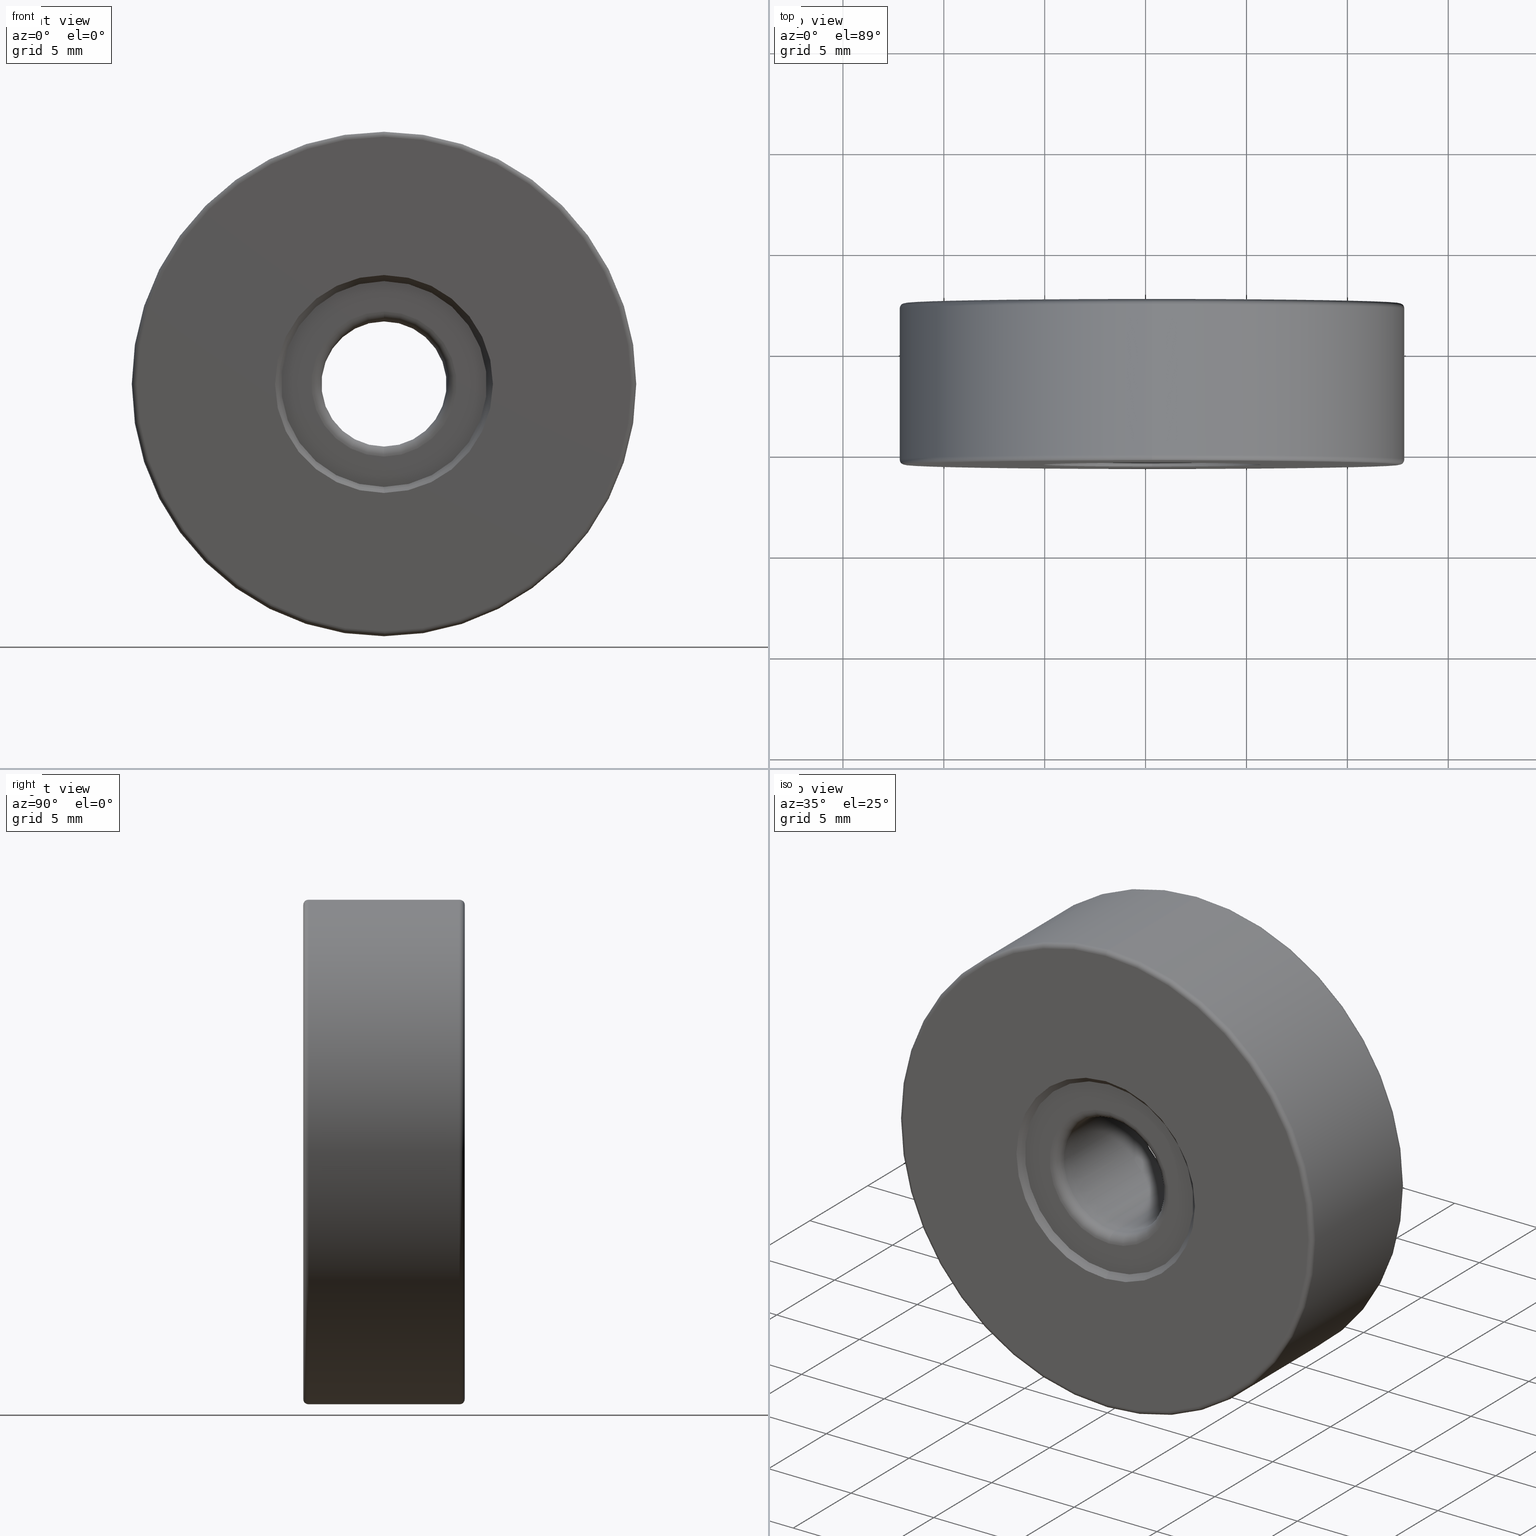
[diagram: canonical four-view strip — front | top / right | iso, engineering-drawing reading convention]
A machine part, canonical four-view strip (front | top / right | iso — engineering-drawing reading convention). The complete STEP part file that produces these views, byte-faithful:
ISO-10303-21;
HEADER;
FILE_DESCRIPTION (( 'STEP AP203' ),
    '1' );
FILE_NAME ('1.4.2.108_ZGH-25-DK8.STEP',
    '2022-04-15T03:01:00',
    ( '' ),
    ( '' ),
    'SwSTEP 2.0',
    'SolidWorks 2021',
    '' );
FILE_SCHEMA (( 'CONFIG_CONTROL_DESIGN' ));
ENDSEC;

DATA;
#1 = EDGE_CURVE ( 'NONE', #123, #253, #270, .T. ) ;
#2 = VERTEX_POINT ( 'NONE', #334 ) ;
#3 = CARTESIAN_POINT ( 'NONE',  ( -4.682026255059963837, 2.405024023001725020, 19.60000000000000497 ) ) ;
#4 = AXIS2_PLACEMENT_3D ( 'NONE', #587, #158, #346 ) ;
#5 = DIRECTION ( 'NONE',  ( 0.0000000000000000000, 0.0000000000000000000, 1.000000000000000000 ) ) ;
#6 = DIRECTION ( 'NONE',  ( 0.0000000000000000000, 0.0000000000000000000, 1.000000000000000000 ) ) ;
#7 = VERTEX_POINT ( 'NONE', #57 ) ;
#8 = CARTESIAN_POINT ( 'NONE',  ( -4.682026255059962949, -5.594975976998274980, 12.75000000000000178 ) ) ;
#9 = VERTEX_POINT ( 'NONE', #108 ) ;
#10 = VERTEX_POINT ( 'NONE', #476 ) ;
#11 = ADVANCED_FACE ( 'NONE', ( #245 ), #228, .T. ) ;
#12 = AXIS2_PLACEMENT_3D ( 'NONE', #408, #70, #118 ) ;
#13 = AXIS2_PLACEMENT_3D ( 'NONE', #581, #534, #479 ) ;
#14 = DIRECTION ( 'NONE',  ( 0.0000000000000000000, 0.0000000000000000000, 1.000000000000000000 ) ) ;
#15 = AXIS2_PLACEMENT_3D ( 'NONE', #544, #295, #583 ) ;
#16 = DIRECTION ( 'NONE',  ( 0.0000000000000000000, 0.0000000000000000000, 1.000000000000000000 ) ) ;
#17 = ORIENTED_EDGE ( 'NONE', *, *, #102, .F. ) ;
#18 = ORIENTED_EDGE ( 'NONE', *, *, #299, .F. ) ;
#19 = EDGE_CURVE ( 'NONE', #558, #2, #417, .T. ) ;
#20 = DIRECTION ( 'NONE',  ( 0.0000000000000000000, 0.0000000000000000000, -1.000000000000000000 ) ) ;
#21 = VERTEX_POINT ( 'NONE', #443 ) ;
#22 = APPROVAL_PERSON_ORGANIZATION ( #357, #115, #366 ) ;
#23 = DIRECTION ( 'NONE',  ( 0.0000000000000000000, 1.000000000000000000, 0.0000000000000000000 ) ) ;
#24 = CARTESIAN_POINT ( 'NONE',  ( -4.682026255059964726, -5.344975976998274980, 25.00000000000000000 ) ) ;
#25 = ORIENTED_EDGE ( 'NONE', *, *, #111, .F. ) ;
#26 = DIRECTION ( 'NONE',  ( 0.0000000000000000000, -0.7071067811865465735, -0.7071067811865485719 ) ) ;
#27 = CALENDAR_DATE ( 2022, 15, 4 ) ;
#28 = ADVANCED_FACE ( 'NONE', ( #453 ), #131, .T. ) ;
#29 = AXIS2_PLACEMENT_3D ( 'NONE', #469, #50, #424 ) ;
#30 = CARTESIAN_POINT ( 'NONE',  ( -4.682026255059964726, -5.594975976998274980, 25.00000000000000000 ) ) ;
#31 = AXIS2_PLACEMENT_3D ( 'NONE', #330, #378, #573 ) ;
#32 = CC_DESIGN_PERSON_AND_ORGANIZATION_ASSIGNMENT ( #351, #257, ( #483 ) ) ;
#33 = ORIENTED_EDGE ( 'NONE', *, *, #58, .F. ) ;
#34 = CARTESIAN_POINT ( 'NONE',  ( -4.682026255059964726, -4.794975976998275158, 25.00000000000000000 ) ) ;
#35 = DIRECTION ( 'NONE',  ( 0.0000000000000000000, 0.0000000000000000000, 1.000000000000000000 ) ) ;
#36 = ADVANCED_FACE ( 'NONE', ( #548, #170 ), #555, .T. ) ;
#37 = DIRECTION ( 'NONE',  ( -0.0000000000000000000, -1.000000000000000000, -0.0000000000000000000 ) ) ;
#38 = DIRECTION ( 'NONE',  ( 0.0000000000000000000, 1.000000000000000000, 0.0000000000000000000 ) ) ;
#39 = ADVANCED_FACE ( 'NONE', ( #301, #305 ), #496, .T. ) ;
#40 = CARTESIAN_POINT ( 'NONE',  ( -4.682026255059964726, -5.344975976998274980, 37.50000000000000711 ) ) ;
#41 = TOROIDAL_SURFACE ( 'NONE', #388, 12.25000000000000000, 0.2500000000000000000 ) ;
#42 = DIRECTION ( 'NONE',  ( 0.0000000000000000000, 0.0000000000000000000, 1.000000000000000000 ) ) ;
#43 = AXIS2_PLACEMENT_3D ( 'NONE', #195, #336, #290 ) ;
#44 = EDGE_LOOP ( 'NONE', ( #289, #103 ) ) ;
#45 = DIRECTION ( 'NONE',  ( 0.0000000000000000000, 0.0000000000000000000, 1.000000000000000000 ) ) ;
#46 = VERTEX_POINT ( 'NONE', #440 ) ;
#47 = ORIENTED_EDGE ( 'NONE', *, *, #1, .T. ) ;
#48 = LINE ( 'NONE', #235, #281 ) ;
#49 = ADVANCED_FACE ( 'NONE', ( #505 ), #82, .F. ) ;
#50 = DIRECTION ( 'NONE',  ( 0.0000000000000000000, -1.000000000000000000, 0.0000000000000000000 ) ) ;
#51 = CIRCLE ( 'NONE', #415, 0.5000000000000004441 ) ;
#52 = DIRECTION ( 'NONE',  ( -0.0000000000000000000, -1.000000000000000000, -0.0000000000000000000 ) ) ;
#53 = ORIENTED_EDGE ( 'NONE', *, *, #95, .T. ) ;
#54 = AXIS2_PLACEMENT_3D ( 'NONE', #524, #145, #5 ) ;
#55 = DIRECTION ( 'NONE',  ( 0.0000000000000000000, 0.0000000000000000000, -1.000000000000000000 ) ) ;
#56 = PRODUCT_DEFINITION_SHAPE ( 'NONE', 'NONE',  #550 ) ;
#57 = CARTESIAN_POINT ( 'NONE',  ( -4.682026255059964726, -5.594975976998274980, 19.60000000000000853 ) ) ;
#58 = EDGE_CURVE ( 'NONE', #146, #123, #592, .T. ) ;
#59 = DIRECTION ( 'NONE',  ( 0.0000000000000000000, 1.000000000000000000, 0.0000000000000000000 ) ) ;
#60 = PRODUCT_DEFINITION_FORMATION_WITH_SPECIFIED_SOURCE ( '�κ�', '', #574, .NOT_KNOWN. ) ;
#61 = ORIENTED_EDGE ( 'NONE', *, *, #267, .F. ) ;
#62 = DIRECTION ( 'NONE',  ( -1.000000000000000000, 0.0000000000000000000, 0.0000000000000000000 ) ) ;
#63 = AXIS2_PLACEMENT_3D ( 'NONE', #318, #414, #560 ) ;
#64 = DIRECTION ( 'NONE',  ( -0.0000000000000000000, -1.000000000000000000, -0.0000000000000000000 ) ) ;
#65 = DIRECTION ( 'NONE',  ( 0.0000000000000000000, -0.0000000000000000000, 1.000000000000000000 ) ) ;
#66 = ADVANCED_FACE ( 'NONE', ( #545 ), #446, .F. ) ;
#67 = ORIENTED_EDGE ( 'NONE', *, *, #611, .F. ) ;
#68 = DIRECTION ( 'NONE',  ( 0.0000000000000000000, 0.0000000000000000000, 1.000000000000000000 ) ) ;
#69 = ORIENTED_EDGE ( 'NONE', *, *, #211, .T. ) ;
#70 = DIRECTION ( 'NONE',  ( 0.0000000000000000000, 0.0000000000000000000, 1.000000000000000000 ) ) ;
#71 = EDGE_LOOP ( 'NONE', ( #600, #78, #275, #97 ) ) ;
#72 = CIRCLE ( 'NONE', #539, 0.2500000000000002220 ) ;
#73 = DIRECTION ( 'NONE',  ( 0.0000000000000000000, 1.000000000000000000, 0.0000000000000000000 ) ) ;
#74 = DIRECTION ( 'NONE',  ( 1.000000000000000000, -0.0000000000000000000, 1.224646799147353207E-16 ) ) ;
#75 = APPLICATION_CONTEXT ( 'configuration controlled 3d designs of mechanical parts and assemblies' ) ;
#76 = EDGE_CURVE ( 'NONE', #10, #253, #271, .T. ) ;
#77 = COORDINATED_UNIVERSAL_TIME_OFFSET ( 8, 0, .AHEAD. ) ;
#78 = ORIENTED_EDGE ( 'NONE', *, *, #345, .T. ) ;
#79 = VERTEX_POINT ( 'NONE', #609 ) ;
#80 = CYLINDRICAL_SURFACE ( 'NONE', #129, 12.50000000000000000 ) ;
#81 = DIRECTION ( 'NONE',  ( 0.0000000000000000000, 0.0000000000000000000, 1.000000000000000000 ) ) ;
#82 = CONICAL_SURFACE ( 'NONE', #4, 5.399999999999991473, 0.7853981633974497223 ) ;
#83 = EDGE_CURVE ( 'NONE', #198, #329, #427, .T. ) ;
#84 = LINE ( 'NONE', #222, #531 ) ;
#85 = DIRECTION ( 'NONE',  ( -0.0000000000000000000, -1.000000000000000000, -0.0000000000000000000 ) ) ;
#86 = DIRECTION ( 'NONE',  ( 0.0000000000000000000, 0.0000000000000000000, 1.000000000000000000 ) ) ;
#87 = DIRECTION ( 'NONE',  ( 0.0000000000000000000, 0.0000000000000000000, -1.000000000000000000 ) ) ;
#88 = CARTESIAN_POINT ( 'NONE',  ( -4.682026255059962949, 2.155024023001725020, 37.50000000000000711 ) ) ;
#89 = DATE_AND_TIME ( #190, #460 ) ;
#90 = AXIS2_PLACEMENT_3D ( 'NONE', #34, #314, #215 ) ;
#91 = ORIENTED_EDGE ( 'NONE', *, *, #393, .F. ) ;
#92 = OPEN_SHELL ( 'NONE', ( #227, #11, #461, #367, #339, #452, #66, #28, #36, #292, #203, #307, #386, #49, #186, #276, #572, #137, #39, #285 ) ) ;
#93 = CONICAL_SURFACE ( 'NONE', #522, 5.399999999999991473, 0.7853981633974497223 ) ;
#94 = EDGE_LOOP ( 'NONE', ( #419, #157 ) ) ;
#95 = EDGE_CURVE ( 'NONE', #421, #558, #226, .T. ) ;
#96 = FACE_OUTER_BOUND ( 'NONE', #498, .T. ) ;
#97 = ORIENTED_EDGE ( 'NONE', *, *, #211, .F. ) ;
#98 = CARTESIAN_POINT ( 'NONE',  ( -4.682026255059964726, 2.155024023001725020, 25.00000000000000000 ) ) ;
#99 = DIRECTION ( 'NONE',  ( 0.0000000000000000000, 0.0000000000000000000, -1.000000000000000000 ) ) ;
#100 = CARTESIAN_POINT ( 'NONE',  ( -4.682026255059964726, 2.405024023001725020, 25.00000000000000000 ) ) ;
#101 = CIRCLE ( 'NONE', #399, 3.599999999999999201 ) ;
#102 = EDGE_CURVE ( 'NONE', #9, #7, #139, .T. ) ;
#103 = ORIENTED_EDGE ( 'NONE', *, *, #102, .T. ) ;
#104 = AXIS2_PLACEMENT_3D ( 'NONE', #507, #361, #363 ) ;
#105 = DIRECTION ( 'NONE',  ( 1.000000000000000000, -0.0000000000000000000, 1.224646799147353207E-16 ) ) ;
#106 = ORIENTED_EDGE ( 'NONE', *, *, #547, .T. ) ;
#107 = DIRECTION ( 'NONE',  ( 0.0000000000000000000, 0.0000000000000000000, 1.000000000000000000 ) ) ;
#108 = CARTESIAN_POINT ( 'NONE',  ( -4.682026255059963837, -5.594975976998274980, 30.39999999999999147 ) ) ;
#109 = ORIENTED_EDGE ( 'NONE', *, *, #566, .T. ) ;
#110 = CARTESIAN_POINT ( 'NONE',  ( -4.682026255059962949, -5.294975976998274270, 28.60000000000000142 ) ) ;
#111 = EDGE_CURVE ( 'NONE', #79, #433, #260, .T. ) ;
#112 = CIRCLE ( 'NONE', #459, 0.5000000000000004441 ) ;
#113 = ORIENTED_EDGE ( 'NONE', *, *, #247, .T. ) ;
#114 = TOROIDAL_SURFACE ( 'NONE', #15, 3.600000000000000089, 0.5000000000000000000 ) ;
#115 = APPROVAL ( #556, 'δָ��' ) ;
#116 = ORIENTED_EDGE ( 'NONE', *, *, #582, .F. ) ;
#117 = MECHANICAL_CONTEXT ( 'NONE', #75, 'mechanical' ) ;
#118 = DIRECTION ( 'NONE',  ( 1.000000000000000000, 0.0000000000000000000, 0.0000000000000000000 ) ) ;
#119 = CIRCLE ( 'NONE', #191, 3.599999999999999201 ) ;
#120 = EDGE_CURVE ( 'NONE', #264, #46, #485, .T. ) ;
#121 = DIRECTION ( 'NONE',  ( 0.0000000000000000000, -0.0000000000000000000, 1.000000000000000000 ) ) ;
#122 = AXIS2_PLACEMENT_3D ( 'NONE', #156, #73, #391 ) ;
#123 = VERTEX_POINT ( 'NONE', #371 ) ;
#124 = DIRECTION ( 'NONE',  ( 0.0000000000000000000, 0.0000000000000000000, -1.000000000000000000 ) ) ;
#125 = APPROVAL ( #303, 'δָ��' ) ;
#126 = PLANE ( 'NONE',  #104 ) ;
#127 = DATE_AND_TIME ( #266, #324 ) ;
#128 = EDGE_CURVE ( 'NONE', #187, #421, #604, .T. ) ;
#129 = AXIS2_PLACEMENT_3D ( 'NONE', #516, #425, #99 ) ;
#130 = CARTESIAN_POINT ( 'NONE',  ( -4.682026255059964726, 2.105024023001725197, 30.10000000000000142 ) ) ;
#131 = TOROIDAL_SURFACE ( 'NONE', #462, 3.600000000000000089, 0.5000000000000000000 ) ;
#132 = DIRECTION ( 'NONE',  ( 0.0000000000000000000, 1.000000000000000000, 0.0000000000000000000 ) ) ;
#133 = ORIENTED_EDGE ( 'NONE', *, *, #547, .F. ) ;
#134 = DIRECTION ( 'NONE',  ( -1.000000000000000000, 0.0000000000000000000, 0.0000000000000000000 ) ) ;
#135 = ORIENTED_EDGE ( 'NONE', *, *, #147, .F. ) ;
#136 = ORIENTED_EDGE ( 'NONE', *, *, #19, .F. ) ;
#137 = ADVANCED_FACE ( 'NONE', ( #606 ), #436, .T. ) ;
#138 = CIRCLE ( 'NONE', #199, 3.599999999999999201 ) ;
#139 = CIRCLE ( 'NONE', #160, 5.399999999999991473 ) ;
#140 = DIRECTION ( 'NONE',  ( -0.0000000000000000000, 1.000000000000000000, -0.0000000000000000000 ) ) ;
#141 = VERTEX_POINT ( 'NONE', #40 ) ;
#142 = FACE_OUTER_BOUND ( 'NONE', #538, .T. ) ;
#143 = DIRECTION ( 'NONE',  ( 0.0000000000000000000, 0.0000000000000000000, 1.000000000000000000 ) ) ;
#144 = APPLICATION_CONTEXT ( 'configuration controlled 3d designs of mechanical parts and assemblies' ) ;
#145 = DIRECTION ( 'NONE',  ( 0.0000000000000000000, 1.000000000000000000, 0.0000000000000000000 ) ) ;
#146 = VERTEX_POINT ( 'NONE', #130 ) ;
#147 = EDGE_CURVE ( 'NONE', #79, #7, #84, .T. ) ;
#148 = DIRECTION ( 'NONE',  ( 0.0000000000000000000, 0.0000000000000000000, -1.000000000000000000 ) ) ;
#149 = ORIENTED_EDGE ( 'NONE', *, *, #247, .F. ) ;
#150 = DIRECTION ( 'NONE',  ( 0.0000000000000000000, 1.000000000000000000, 0.0000000000000000000 ) ) ;
#151 = CIRCLE ( 'NONE', #409, 0.5000000000000004441 ) ;
#152 = ORIENTED_EDGE ( 'NONE', *, *, #19, .T. ) ;
#153 = AXIS2_PLACEMENT_3D ( 'NONE', #206, #23, #121 ) ;
#154 = DIRECTION ( 'NONE',  ( 0.0000000000000000000, 1.000000000000000000, 0.0000000000000000000 ) ) ;
#155 = EDGE_LOOP ( 'NONE', ( #385, #375, #259, #67 ) ) ;
#156 = CARTESIAN_POINT ( 'NONE',  ( -4.682026255059964726, -5.344975976998274980, 25.00000000000000000 ) ) ;
#157 = ORIENTED_EDGE ( 'NONE', *, *, #120, .T. ) ;
#158 = DIRECTION ( 'NONE',  ( -0.0000000000000000000, -1.000000000000000000, -0.0000000000000000000 ) ) ;
#159 = APPROVAL_PERSON_ORGANIZATION ( #458, #477, #599 ) ;
#160 = AXIS2_PLACEMENT_3D ( 'NONE', #277, #132, #457 ) ;
#161 = CARTESIAN_POINT ( 'NONE',  ( -4.682026255059964726, -5.294975976998275158, 25.00000000000000000 ) ) ;
#162 = CARTESIAN_POINT ( 'NONE',  ( -4.682026255059964726, 2.105024023001731859, 30.10000000000000142 ) ) ;
#163 = SECURITY_CLASSIFICATION_LEVEL ( 'unclassified' ) ;
#164 = ORIENTED_EDGE ( 'NONE', *, *, #493, .T. ) ;
#165 = FACE_OUTER_BOUND ( 'NONE', #249, .T. ) ;
#166 = DIRECTION ( 'NONE',  ( 0.0000000000000000000, 1.000000000000000000, 0.0000000000000000000 ) ) ;
#167 =( NAMED_UNIT ( * ) PLANE_ANGLE_UNIT ( ) SI_UNIT ( $, .RADIAN. ) );
#168 = ORIENTED_EDGE ( 'NONE', *, *, #406, .T. ) ;
#169 = DIRECTION ( 'NONE',  ( 0.0000000000000000000, 0.0000000000000000000, 1.000000000000000000 ) ) ;
#170 = FACE_OUTER_BOUND ( 'NONE', #188, .T. ) ;
#171 = EDGE_LOOP ( 'NONE', ( #615, #255, #69, #283 ) ) ;
#172 = CIRCLE ( 'NONE', #589, 12.50000000000000355 ) ;
#173 = CIRCLE ( 'NONE', #512, 5.100000000000000533 ) ;
#174 = AXIS2_PLACEMENT_3D ( 'NONE', #300, #537, #488 ) ;
#175 = EDGE_LOOP ( 'NONE', ( #490, #569, #372, #17 ) ) ;
#176 = DIRECTION ( 'NONE',  ( 0.0000000000000000000, 0.0000000000000000000, 1.000000000000000000 ) ) ;
#177 = EDGE_CURVE ( 'NONE', #146, #10, #173, .T. ) ;
#178 = DATE_AND_TIME ( #27, #511 ) ;
#179 = DIRECTION ( 'NONE',  ( 0.0000000000000000000, 1.000000000000000000, 0.0000000000000000000 ) ) ;
#180 = DIRECTION ( 'NONE',  ( 0.0000000000000000000, 1.000000000000000000, 0.0000000000000000000 ) ) ;
#181 = CARTESIAN_POINT ( 'NONE',  ( -4.682026255059964726, 2.155024023001725020, 37.25000000000000711 ) ) ;
#182 = CC_DESIGN_SECURITY_CLASSIFICATION ( #483, ( #60 ) ) ;
#183 = AXIS2_PLACEMENT_3D ( 'NONE', #100, #422, #472 ) ;
#184 = FACE_OUTER_BOUND ( 'NONE', #94, .T. ) ;
#185 = ORIENTED_EDGE ( 'NONE', *, *, #591, .T. ) ;
#186 = ADVANCED_FACE ( 'NONE', ( #184, #321 ), #126, .F. ) ;
#187 = VERTEX_POINT ( 'NONE', #221 ) ;
#188 = EDGE_LOOP ( 'NONE', ( #373, #444 ) ) ;
#189 = DIRECTION ( 'NONE',  ( 0.0000000000000000000, 0.0000000000000000000, 1.000000000000000000 ) ) ;
#190 = CALENDAR_DATE ( 2022, 15, 4 ) ;
#191 = AXIS2_PLACEMENT_3D ( 'NONE', #435, #64, #68 ) ;
#192 = CARTESIAN_POINT ( 'NONE',  ( -4.682026255059964726, -5.594975976998274980, 25.00000000000000000 ) ) ;
#193 = EDGE_CURVE ( 'NONE', #323, #421, #238, .T. ) ;
#194 = ORIENTED_EDGE ( 'NONE', *, *, #58, .T. ) ;
#195 = CARTESIAN_POINT ( 'NONE',  ( -4.682026255059964726, 2.105024023001725197, 25.00000000000000000 ) ) ;
#196 = ORIENTED_EDGE ( 'NONE', *, *, #481, .F. ) ;
#197 = DIRECTION ( 'NONE',  ( 0.0000000000000000000, 1.000000000000000000, 0.0000000000000000000 ) ) ;
#198 = VERTEX_POINT ( 'NONE', #88 ) ;
#199 = AXIS2_PLACEMENT_3D ( 'NONE', #478, #233, #278 ) ;
#200 = TOROIDAL_SURFACE ( 'NONE', #411, 3.600000000000000089, 0.5000000000000000000 ) ;
#201 = CIRCLE ( 'NONE', #174, 5.100000000000000533 ) ;
#202 = DIRECTION ( 'NONE',  ( 0.0000000000000000000, -1.000000000000000000, 0.0000000000000000000 ) ) ;
#203 = ADVANCED_FACE ( 'NONE', ( #280 ), #216, .F. ) ;
#204 = ORIENTED_EDGE ( 'NONE', *, *, #536, .F. ) ;
#205 = CARTESIAN_POINT ( 'NONE',  ( -4.682026255059964726, -4.794975976998275158, 28.10000000000000142 ) ) ;
#206 = CARTESIAN_POINT ( 'NONE',  ( -4.682026255059964726, 2.105024023001725197, 25.00000000000000000 ) ) ;
#207 = CARTESIAN_POINT ( 'NONE',  ( -4.682026255059963837, -5.294975976998275158, 30.10000000000000142 ) ) ;
#208 = CARTESIAN_POINT ( 'NONE',  ( -4.682026255059964726, 1.605024023001724975, 25.00000000000000000 ) ) ;
#209 = AXIS2_PLACEMENT_3D ( 'NONE', #398, #296, #65 ) ;
#210 = DIRECTION ( 'NONE',  ( -0.0000000000000000000, -1.000000000000000000, -0.0000000000000000000 ) ) ;
#211 = EDGE_CURVE ( 'NONE', #466, #310, #48, .T. ) ;
#212 = CARTESIAN_POINT ( 'NONE',  ( -4.682026255059964726, -5.594975976998274980, 25.00000000000000000 ) ) ;
#213 = COORDINATED_UNIVERSAL_TIME_OFFSET ( 8, 0, .AHEAD. ) ;
#214 = DATE_AND_TIME ( #353, #237 ) ;
#215 = DIRECTION ( 'NONE',  ( 0.0000000000000000000, 0.0000000000000000000, -1.000000000000000000 ) ) ;
#216 = CYLINDRICAL_SURFACE ( 'NONE', #449, 3.099999999999998757 ) ;
#217 = APPROVAL_STATUS ( 'not_yet_approved' ) ;
#218 = CIRCLE ( 'NONE', #337, 12.50000000000000355 ) ;
#219 = AXIS2_PLACEMENT_3D ( 'NONE', #311, #518, #273 ) ;
#220 = ORIENTED_EDGE ( 'NONE', *, *, #429, .T. ) ;
#221 = CARTESIAN_POINT ( 'NONE',  ( -4.682026255059964726, -4.794975976998275158, 21.90000000000000213 ) ) ;
#222 = CARTESIAN_POINT ( 'NONE',  ( -4.682026255059964726, -5.594975976998274980, 19.60000000000000853 ) ) ;
#223 = DIRECTION ( 'NONE',  ( 0.0000000000000000000, 0.0000000000000000000, 1.000000000000000000 ) ) ;
#224 = EDGE_LOOP ( 'NONE', ( #25, #320 ) ) ;
#225 = AXIS2_PLACEMENT_3D ( 'NONE', #380, #52, #148 ) ;
#226 = LINE ( 'NONE', #369, #315 ) ;
#227 = ADVANCED_FACE ( 'NONE', ( #96 ), #521, .F. ) ;
#228 = TOROIDAL_SURFACE ( 'NONE', #348, 12.25000000000000000, 0.2500000000000000000 ) ;
#229 = EDGE_LOOP ( 'NONE', ( #268, #568, #383, #487 ) ) ;
#230 = DIRECTION ( 'NONE',  ( -0.0000000000000000000, -1.000000000000000000, -0.0000000000000000000 ) ) ;
#231 = EDGE_LOOP ( 'NONE', ( #359, #416, #474, #340 ) ) ;
#232 = VERTEX_POINT ( 'NONE', #484 ) ;
#233 = DIRECTION ( 'NONE',  ( -0.0000000000000000000, 1.000000000000000000, -0.0000000000000000000 ) ) ;
#234 = EDGE_CURVE ( 'NONE', #264, #310, #470, .T. ) ;
#235 = CARTESIAN_POINT ( 'NONE',  ( -4.682026255059964726, 2.405024023001725020, 12.50000000000000000 ) ) ;
#236 = CC_DESIGN_APPROVAL ( #477, ( #60 ) ) ;
#237 = LOCAL_TIME ( 11, 1, 0.0000000000000000000, #403 ) ;
#238 = CIRCLE ( 'NONE', #219, 0.5000000000000004441 ) ;
#239 = DIRECTION ( 'NONE',  ( -1.000000000000000000, 0.0000000000000000000, 0.0000000000000000000 ) ) ;
#240 = CARTESIAN_POINT ( 'NONE',  ( -4.682026255059964726, 1.605024023001724975, 25.00000000000000000 ) ) ;
#241 = ORIENTED_EDGE ( 'NONE', *, *, #517, .T. ) ;
#242 = UNCERTAINTY_MEASURE_WITH_UNIT (LENGTH_MEASURE( 1.000000000000000082E-05 ), #546, 'distance_accuracy_value', 'NONE');
#243 = EDGE_LOOP ( 'NONE', ( #18, #528, #475, #354 ) ) ;
#244 = DIRECTION ( 'NONE',  ( -0.0000000000000000000, -1.000000000000000000, -0.0000000000000000000 ) ) ;
#245 = FACE_OUTER_BOUND ( 'NONE', #243, .T. ) ;
#246 = CC_DESIGN_APPROVAL ( #125, ( #550 ) ) ;
#247 = EDGE_CURVE ( 'NONE', #21, #329, #248, .T. ) ;
#248 = CIRCLE ( 'NONE', #183, 12.25000000000000355 ) ;
#249 = EDGE_LOOP ( 'NONE', ( #577, #525, #482, #196 ) ) ;
#250 = TOROIDAL_SURFACE ( 'NONE', #122, 12.25000000000000000, 0.2500000000000000000 ) ;
#251 = CARTESIAN_POINT ( 'NONE',  ( -4.682026255059964726, -5.594975976998274980, 25.00000000000000000 ) ) ;
#252 = CC_DESIGN_PERSON_AND_ORGANIZATION_ASSIGNMENT ( #448, #506, ( #574 ) ) ;
#253 = VERTEX_POINT ( 'NONE', #3 ) ;
#254 = DIRECTION ( 'NONE',  ( 0.0000000000000000000, 0.0000000000000000000, 1.000000000000000000 ) ) ;
#255 = ORIENTED_EDGE ( 'NONE', *, *, #527, .T. ) ;
#256 = EDGE_CURVE ( 'NONE', #2, #558, #368, .T. ) ;
#257 = PERSON_AND_ORGANIZATION_ROLE ( 'classification_officer' ) ;
#258 = CIRCLE ( 'NONE', #491, 12.25000000000000355 ) ;
#259 = ORIENTED_EDGE ( 'NONE', *, *, #128, .F. ) ;
#260 = CIRCLE ( 'NONE', #63, 5.100000000000000533 ) ;
#261 = CC_DESIGN_PERSON_AND_ORGANIZATION_ASSIGNMENT ( #497, #594, ( #60 ) ) ;
#262 = CARTESIAN_POINT ( 'NONE',  ( -4.682026255059964726, -5.344975976998274980, 25.00000000000000000 ) ) ;
#263 = DATE_AND_TIME ( #412, #426 ) ;
#264 = VERTEX_POINT ( 'NONE', #8 ) ;
#265 = DIRECTION ( 'NONE',  ( -0.0000000000000000000, 1.000000000000000000, -0.0000000000000000000 ) ) ;
#266 = CALENDAR_DATE ( 2022, 15, 4 ) ;
#267 = EDGE_CURVE ( 'NONE', #10, #146, #338, .T. ) ;
#268 = ORIENTED_EDGE ( 'NONE', *, *, #234, .F. ) ;
#269 = CARTESIAN_POINT ( 'NONE',  ( -4.682026255059964726, 2.105024023001725197, 25.00000000000000000 ) ) ;
#270 = CIRCLE ( 'NONE', #13, 5.399999999999995026 ) ;
#271 = LINE ( 'NONE', #514, #389 ) ;
#272 = APPLICATION_PROTOCOL_DEFINITION ( 'international standard', 'config_control_design', 1994, #144 ) ;
#273 = DIRECTION ( 'NONE',  ( 0.0000000000000000000, 0.0000000000000000000, -1.000000000000000000 ) ) ;
#274 = DIRECTION ( 'NONE',  ( 0.0000000000000000000, 0.0000000000000000000, 1.000000000000000000 ) ) ;
#275 = ORIENTED_EDGE ( 'NONE', *, *, #473, .T. ) ;
#276 = ADVANCED_FACE ( 'NONE', ( #384 ), #41, .T. ) ;
#277 = CARTESIAN_POINT ( 'NONE',  ( -4.682026255059964726, -5.594975976998274980, 25.00000000000000000 ) ) ;
#278 = DIRECTION ( 'NONE',  ( 0.0000000000000000000, 0.0000000000000000000, -1.000000000000000000 ) ) ;
#279 = CIRCLE ( 'NONE', #29, 3.099999999999998757 ) ;
#280 = FACE_OUTER_BOUND ( 'NONE', #431, .T. ) ;
#281 = VECTOR ( 'NONE', #430, 1000.000000000000000 ) ;
#282 = DIRECTION ( 'NONE',  ( 1.000000000000000000, -0.0000000000000000000, 1.224646799147353207E-16 ) ) ;
#283 = ORIENTED_EDGE ( 'NONE', *, *, #377, .T. ) ;
#284 = CARTESIAN_POINT ( 'NONE',  ( -4.682026255059962949, -5.344975976998274980, 12.75000000000000178 ) ) ;
#285 = ADVANCED_FACE ( 'NONE', ( #142 ), #557, .F. ) ;
#286 = ORIENTED_EDGE ( 'NONE', *, *, #429, .F. ) ;
#287 = AXIS2_PLACEMENT_3D ( 'NONE', #284, #105, #55 ) ;
#288 = FACE_OUTER_BOUND ( 'NONE', #171, .T. ) ;
#289 = ORIENTED_EDGE ( 'NONE', *, *, #605, .T. ) ;
#290 = DIRECTION ( 'NONE',  ( 0.0000000000000000000, 0.0000000000000000000, 1.000000000000000000 ) ) ;
#291 = ORIENTED_EDGE ( 'NONE', *, *, #509, .F. ) ;
#292 = ADVANCED_FACE ( 'NONE', ( #432 ), #200, .T. ) ;
#293 = CARTESIAN_POINT ( 'NONE',  ( -4.682026255059964726, 1.605024023001724975, 25.00000000000000000 ) ) ;
#294 = EDGE_LOOP ( 'NONE', ( #133, #306, #185, #349 ) ) ;
#295 = DIRECTION ( 'NONE',  ( 0.0000000000000000000, -1.000000000000000000, 0.0000000000000000000 ) ) ;
#296 = DIRECTION ( 'NONE',  ( 0.0000000000000000000, 1.000000000000000000, 0.0000000000000000000 ) ) ;
#297 = VECTOR ( 'NONE', #319, 1000.000000000000000 ) ;
#298 = CIRCLE ( 'NONE', #379, 12.50000000000000355 ) ;
#299 = EDGE_CURVE ( 'NONE', #466, #198, #298, .T. ) ;
#300 = CARTESIAN_POINT ( 'NONE',  ( -4.682026255059964726, -5.294975976998275158, 25.00000000000000000 ) ) ;
#301 = FACE_OUTER_BOUND ( 'NONE', #455, .T. ) ;
#302 = CARTESIAN_POINT ( 'NONE',  ( -4.682026255059964726, -5.594975976998274980, 25.00000000000000000 ) ) ;
#303 = APPROVAL_STATUS ( 'not_yet_approved' ) ;
#304 = AXIS2_PLACEMENT_3D ( 'NONE', #30, #37, #86 ) ;
#305 = FACE_BOUND ( 'NONE', #352, .T. ) ;
#306 = ORIENTED_EDGE ( 'NONE', *, *, #493, .F. ) ;
#307 = ADVANCED_FACE ( 'NONE', ( #404 ), #114, .T. ) ;
#308 = DIRECTION ( 'NONE',  ( -0.0000000000000000000, 1.000000000000000000, -0.0000000000000000000 ) ) ;
#309 = APPROVAL_ROLE ( '' ) ;
#310 = VERTEX_POINT ( 'NONE', #343 ) ;
#311 = CARTESIAN_POINT ( 'NONE',  ( -4.682026255059963837, -4.794975976998275158, 28.60000000000000142 ) ) ;
#312 = PERSON_AND_ORGANIZATION ( #510, #579 ) ;
#313 = CIRCLE ( 'NONE', #570, 12.25000000000000355 ) ;
#314 = DIRECTION ( 'NONE',  ( 0.0000000000000000000, -1.000000000000000000, 0.0000000000000000000 ) ) ;
#315 = VECTOR ( 'NONE', #308, 1000.000000000000000 ) ;
#316 = DIRECTION ( 'NONE',  ( 0.0000000000000000000, 1.000000000000000000, 0.0000000000000000000 ) ) ;
#317 = EDGE_CURVE ( 'NONE', #433, #79, #201, .T. ) ;
#318 = CARTESIAN_POINT ( 'NONE',  ( -4.682026255059964726, -5.294975976998275158, 25.00000000000000000 ) ) ;
#319 = DIRECTION ( 'NONE',  ( 8.659560562354946417E-17, -0.7071067811865465735, 0.7071067811865485719 ) ) ;
#320 = ORIENTED_EDGE ( 'NONE', *, *, #317, .F. ) ;
#321 = FACE_BOUND ( 'NONE', #44, .T. ) ;
#322 = ORIENTED_EDGE ( 'NONE', *, *, #193, .F. ) ;
#323 = VERTEX_POINT ( 'NONE', #110 ) ;
#324 = LOCAL_TIME ( 11, 1, 0.0000000000000000000, #213 ) ;
#325 = AXIS2_PLACEMENT_3D ( 'NONE', #240, #197, #526 ) ;
#326 = APPROVAL_DATE_TIME ( #89, #115 ) ;
#327 = DIRECTION ( 'NONE',  ( 0.0000000000000000000, 1.000000000000000000, 0.0000000000000000000 ) ) ;
#328 = CARTESIAN_POINT ( 'NONE',  ( -4.682026255059963837, 1.605024023001724975, 21.40000000000000213 ) ) ;
#329 = VERTEX_POINT ( 'NONE', #344 ) ;
#330 = CARTESIAN_POINT ( 'NONE',  ( -4.682026255059964726, 2.105024023001731859, 25.00000000000000000 ) ) ;
#331 = COORDINATED_UNIVERSAL_TIME_OFFSET ( 8, 0, .AHEAD. ) ;
#332 = CARTESIAN_POINT ( 'NONE',  ( -4.682026255059964726, 2.105024023001725197, 28.60000000000000142 ) ) ;
#333 = DIRECTION ( 'NONE',  ( 0.0000000000000000000, 0.0000000000000000000, 1.000000000000000000 ) ) ;
#334 = CARTESIAN_POINT ( 'NONE',  ( -4.682026255059964726, 1.605024023001724975, 21.90000000000000213 ) ) ;
#335 = CARTESIAN_POINT ( 'NONE',  ( -4.682026255059964726, 1.605024023001724975, 28.60000000000000142 ) ) ;
#336 = DIRECTION ( 'NONE',  ( 0.0000000000000000000, 1.000000000000000000, 0.0000000000000000000 ) ) ;
#337 = AXIS2_PLACEMENT_3D ( 'NONE', #24, #154, #396 ) ;
#338 = CIRCLE ( 'NONE', #43, 5.100000000000000533 ) ;
#339 = ADVANCED_FACE ( 'NONE', ( #590 ), #93, .F. ) ;
#340 = ORIENTED_EDGE ( 'NONE', *, *, #95, .F. ) ;
#341 = CARTESIAN_POINT ( 'NONE',  ( -4.682026255059964726, -5.344975976998274980, 37.25000000000000711 ) ) ;
#342 = DIRECTION ( 'NONE',  ( 0.0000000000000000000, 1.000000000000000000, 0.0000000000000000000 ) ) ;
#343 = CARTESIAN_POINT ( 'NONE',  ( -4.682026255059962949, -5.344975976998274980, 12.50000000000000000 ) ) ;
#344 = CARTESIAN_POINT ( 'NONE',  ( -4.682026255059964726, 2.405024023001725020, 37.25000000000000711 ) ) ;
#345 = EDGE_CURVE ( 'NONE', #198, #141, #597, .T. ) ;
#346 = DIRECTION ( 'NONE',  ( 0.0000000000000000000, 0.0000000000000000000, -1.000000000000000000 ) ) ;
#347 =( GEOMETRIC_REPRESENTATION_CONTEXT ( 3 ) GLOBAL_UNCERTAINTY_ASSIGNED_CONTEXT ( ( #242 ) ) GLOBAL_UNIT_ASSIGNED_CONTEXT ( ( #546, #167, #503 ) ) REPRESENTATION_CONTEXT ( 'NONE', 'WORKASPACE' ) );
#348 = AXIS2_PLACEMENT_3D ( 'NONE', #489, #59, #16 ) ;
#349 = ORIENTED_EDGE ( 'NONE', *, *, #256, .F. ) ;
#350 = DIRECTION ( 'NONE',  ( 0.0000000000000000000, 0.7071067811865444641, 0.7071067811865505703 ) ) ;
#351 = PERSON_AND_ORGANIZATION ( #510, #579 ) ;
#352 = EDGE_LOOP ( 'NONE', ( #47, #595 ) ) ;
#353 = CALENDAR_DATE ( 2022, 15, 4 ) ;
#354 = ORIENTED_EDGE ( 'NONE', *, *, #83, .F. ) ;
#355 = CARTESIAN_POINT ( 'NONE',  ( -4.682026255059964726, 2.405024023001725020, 25.00000000000000000 ) ) ;
#356 = DIRECTION ( 'NONE',  ( 0.0000000000000000000, 0.0000000000000000000, 1.000000000000000000 ) ) ;
#357 = PERSON_AND_ORGANIZATION ( #510, #579 ) ;
#358 = AXIS2_PLACEMENT_3D ( 'NONE', #161, #202, #356 ) ;
#359 = ORIENTED_EDGE ( 'NONE', *, *, #582, .T. ) ;
#360 = VECTOR ( 'NONE', #350, 1000.000000000000000 ) ;
#361 = DIRECTION ( 'NONE',  ( 0.0000000000000000000, 1.000000000000000000, 0.0000000000000000000 ) ) ;
#362 = ORIENTED_EDGE ( 'NONE', *, *, #527, .F. ) ;
#363 = DIRECTION ( 'NONE',  ( 0.0000000000000000000, -0.0000000000000000000, 1.000000000000000000 ) ) ;
#364 = APPROVAL_DATE_TIME ( #178, #477 ) ;
#365 = CARTESIAN_POINT ( 'NONE',  ( -4.682026255059964726, 2.155024023001725020, 25.00000000000000000 ) ) ;
#366 = APPROVAL_ROLE ( '' ) ;
#367 = ADVANCED_FACE ( 'NONE', ( #165 ), #250, .T. ) ;
#368 = CIRCLE ( 'NONE', #325, 3.099999999999998757 ) ;
#369 = CARTESIAN_POINT ( 'NONE',  ( -4.682026255059964726, -5.594975976998274980, 28.10000000000000142 ) ) ;
#370 = CARTESIAN_POINT ( 'NONE',  ( -4.682026255059964726, -5.594975976998274980, 21.90000000000000213 ) ) ;
#371 = CARTESIAN_POINT ( 'NONE',  ( -4.682026255059964726, 2.405024023001725020, 30.39999999999999503 ) ) ;
#372 = ORIENTED_EDGE ( 'NONE', *, *, #147, .T. ) ;
#373 = ORIENTED_EDGE ( 'NONE', *, *, #177, .T. ) ;
#374 = CARTESIAN_POINT ( 'NONE',  ( -4.682026255059963837, -5.594975976998274980, 30.39999999999999147 ) ) ;
#375 = ORIENTED_EDGE ( 'NONE', *, *, #193, .T. ) ;
#376 = CIRCLE ( 'NONE', #502, 5.399999999999991473 ) ;
#377 = EDGE_CURVE ( 'NONE', #310, #141, #471, .T. ) ;
#378 = DIRECTION ( 'NONE',  ( 0.0000000000000000000, 1.000000000000000000, 0.0000000000000000000 ) ) ;
#379 = AXIS2_PLACEMENT_3D ( 'NONE', #387, #230, #14 ) ;
#380 = CARTESIAN_POINT ( 'NONE',  ( -4.682026255059964726, 2.405024023001725020, 25.00000000000000000 ) ) ;
#381 = MANIFOLD_SURFACE_SHAPE_REPRESENTATION ( '1.4.2.108_ZGH-25-DK8', ( #586, #12 ), #347 ) ;
#382 = CARTESIAN_POINT ( 'NONE',  ( -4.682026255059964726, 1.605024023001724975, 28.10000000000000142 ) ) ;
#383 = ORIENTED_EDGE ( 'NONE', *, *, #481, .T. ) ;
#384 = FACE_OUTER_BOUND ( 'NONE', #229, .T. ) ;
#385 = ORIENTED_EDGE ( 'NONE', *, *, #566, .F. ) ;
#386 = ADVANCED_FACE ( 'NONE', ( #394, #540 ), #492, .T. ) ;
#387 = CARTESIAN_POINT ( 'NONE',  ( -4.682026255059964726, 2.155024023001725020, 25.00000000000000000 ) ) ;
#388 = AXIS2_PLACEMENT_3D ( 'NONE', #578, #150, #189 ) ;
#389 = VECTOR ( 'NONE', #602, 1000.000000000000000 ) ;
#390 = CC_DESIGN_PERSON_AND_ORGANIZATION_ASSIGNMENT ( #456, #561, ( #550 ) ) ;
#391 = DIRECTION ( 'NONE',  ( 0.0000000000000000000, 0.0000000000000000000, 1.000000000000000000 ) ) ;
#392 = EDGE_LOOP ( 'NONE', ( #291, #362, #438, #149 ) ) ;
#393 = EDGE_CURVE ( 'NONE', #253, #123, #434, .T. ) ;
#394 = FACE_BOUND ( 'NONE', #588, .T. ) ;
#395 = ORIENTED_EDGE ( 'NONE', *, *, #591, .F. ) ;
#396 = DIRECTION ( 'NONE',  ( 0.0000000000000000000, 0.0000000000000000000, 1.000000000000000000 ) ) ;
#397 = CARTESIAN_POINT ( 'NONE',  ( -4.682026255059963837, 2.105024023001725197, 21.40000000000000213 ) ) ;
#398 = CARTESIAN_POINT ( 'NONE',  ( -4.682026255059964726, 2.405024023001725020, 25.00000000000000000 ) ) ;
#399 = AXIS2_PLACEMENT_3D ( 'NONE', #585, #442, #20 ) ;
#400 = PERSON_AND_ORGANIZATION_ROLE ( 'creator' ) ;
#401 = AXIS2_PLACEMENT_3D ( 'NONE', #293, #327, #423 ) ;
#402 = CARTESIAN_POINT ( 'NONE',  ( -4.682026255059962949, 2.405024023001725020, 37.50000000000000711 ) ) ;
#403 = COORDINATED_UNIVERSAL_TIME_OFFSET ( 8, 0, .AHEAD. ) ;
#404 = FACE_OUTER_BOUND ( 'NONE', #495, .T. ) ;
#405 = DATE_TIME_ROLE ( 'classification_date' ) ;
#406 = EDGE_CURVE ( 'NONE', #441, #617, #119, .T. ) ;
#407 = CARTESIAN_POINT ( 'NONE',  ( -4.682026255059964726, -5.594975976998274980, 25.00000000000000000 ) ) ;
#408 = CARTESIAN_POINT ( 'NONE',  ( 0.0000000000000000000, 0.0000000000000000000, 0.0000000000000000000 ) ) ;
#409 = AXIS2_PLACEMENT_3D ( 'NONE', #335, #239, #42 ) ;
#410 = LINE ( 'NONE', #374, #297 ) ;
#411 = AXIS2_PLACEMENT_3D ( 'NONE', #580, #342, #45 ) ;
#412 = CALENDAR_DATE ( 2022, 15, 4 ) ;
#413 = FACE_OUTER_BOUND ( 'NONE', #71, .T. ) ;
#414 = DIRECTION ( 'NONE',  ( -0.0000000000000000000, 1.000000000000000000, -0.0000000000000000000 ) ) ;
#415 = AXIS2_PLACEMENT_3D ( 'NONE', #328, #282, #87 ) ;
#416 = ORIENTED_EDGE ( 'NONE', *, *, #536, .T. ) ;
#417 = CIRCLE ( 'NONE', #401, 3.099999999999998757 ) ;
#418 = CARTESIAN_POINT ( 'NONE',  ( -4.682026255059964726, -4.794975976998275158, 21.40000000000000213 ) ) ;
#419 = ORIENTED_EDGE ( 'NONE', *, *, #420, .T. ) ;
#420 = EDGE_CURVE ( 'NONE', #46, #264, #258, .T. ) ;
#421 = VERTEX_POINT ( 'NONE', #205 ) ;
#422 = DIRECTION ( 'NONE',  ( 0.0000000000000000000, 1.000000000000000000, 0.0000000000000000000 ) ) ;
#423 = DIRECTION ( 'NONE',  ( 0.0000000000000000000, 0.0000000000000000000, 1.000000000000000000 ) ) ;
#424 = DIRECTION ( 'NONE',  ( 0.0000000000000000000, 0.0000000000000000000, -1.000000000000000000 ) ) ;
#425 = DIRECTION ( 'NONE',  ( -0.0000000000000000000, -1.000000000000000000, -0.0000000000000000000 ) ) ;
#426 = LOCAL_TIME ( 11, 1, 0.0000000000000000000, #77 ) ;
#427 = CIRCLE ( 'NONE', #593, 0.2500000000000002220 ) ;
#428 = DIRECTION ( 'NONE',  ( -0.0000000000000000000, -1.000000000000000000, -0.0000000000000000000 ) ) ;
#429 = EDGE_CURVE ( 'NONE', #232, #323, #101, .T. ) ;
#430 = DIRECTION ( 'NONE',  ( -0.0000000000000000000, -1.000000000000000000, -0.0000000000000000000 ) ) ;
#431 = EDGE_LOOP ( 'NONE', ( #204, #596, #53, #152 ) ) ;
#432 = FACE_OUTER_BOUND ( 'NONE', #294, .T. ) ;
#433 = VERTEX_POINT ( 'NONE', #207 ) ;
#434 = CIRCLE ( 'NONE', #530, 5.399999999999995026 ) ;
#435 = CARTESIAN_POINT ( 'NONE',  ( -4.682026255059964726, 2.105024023001725197, 25.00000000000000000 ) ) ;
#436 = TOROIDAL_SURFACE ( 'NONE', #565, 12.25000000000000000, 0.2500000000000000000 ) ;
#437 = VECTOR ( 'NONE', #500, 1000.000000000000000 ) ;
#438 = ORIENTED_EDGE ( 'NONE', *, *, #83, .T. ) ;
#439 = DIRECTION ( 'NONE',  ( -0.0000000000000000000, -1.000000000000000000, -0.0000000000000000000 ) ) ;
#440 = CARTESIAN_POINT ( 'NONE',  ( -4.682026255059964726, -5.594975976998274980, 37.25000000000000711 ) ) ;
#441 = VERTEX_POINT ( 'NONE', #397 ) ;
#442 = DIRECTION ( 'NONE',  ( -0.0000000000000000000, 1.000000000000000000, -0.0000000000000000000 ) ) ;
#443 = CARTESIAN_POINT ( 'NONE',  ( -4.682026255059962949, 2.405024023001725020, 12.75000000000000178 ) ) ;
#444 = ORIENTED_EDGE ( 'NONE', *, *, #267, .T. ) ;
#445 = DIRECTION ( 'NONE',  ( 0.0000000000000000000, 0.0000000000000000000, -1.000000000000000000 ) ) ;
#446 = CYLINDRICAL_SURFACE ( 'NONE', #504, 3.099999999999998757 ) ;
#447 = CIRCLE ( 'NONE', #468, 3.599999999999999201 ) ;
#448 = PERSON_AND_ORGANIZATION ( #510, #579 ) ;
#449 = AXIS2_PLACEMENT_3D ( 'NONE', #407, #265, #333 ) ;
#450 = ORIENTED_EDGE ( 'NONE', *, *, #76, .F. ) ;
#451 = DIRECTION ( 'NONE',  ( 0.0000000000000000000, 1.000000000000000000, 0.0000000000000000000 ) ) ;
#452 = ADVANCED_FACE ( 'NONE', ( #559 ), #554, .T. ) ;
#453 = FACE_OUTER_BOUND ( 'NONE', #551, .T. ) ;
#454 = COORDINATED_UNIVERSAL_TIME_OFFSET ( 8, 0, .AHEAD. ) ;
#455 = EDGE_LOOP ( 'NONE', ( #519, #113 ) ) ;
#456 = PERSON_AND_ORGANIZATION ( #510, #579 ) ;
#457 = DIRECTION ( 'NONE',  ( 0.0000000000000000000, 0.0000000000000000000, 1.000000000000000000 ) ) ;
#458 = PERSON_AND_ORGANIZATION ( #510, #579 ) ;
#459 = AXIS2_PLACEMENT_3D ( 'NONE', #418, #575, #143 ) ;
#460 = LOCAL_TIME ( 11, 1, 0.0000000000000000000, #331 ) ;
#461 = ADVANCED_FACE ( 'NONE', ( #413 ), #80, .T. ) ;
#462 = AXIS2_PLACEMENT_3D ( 'NONE', #208, #166, #598 ) ;
#463 = DIRECTION ( 'NONE',  ( 0.0000000000000000000, 0.0000000000000000000, -1.000000000000000000 ) ) ;
#464 = DIRECTION ( 'NONE',  ( -0.0000000000000000000, 1.000000000000000000, -0.0000000000000000000 ) ) ;
#465 = SHAPE_DEFINITION_REPRESENTATION ( #56, #381 ) ;
#466 = VERTEX_POINT ( 'NONE', #529 ) ;
#467 = DIRECTION ( 'NONE',  ( 0.0000000000000000000, -1.000000000000000000, 0.0000000000000000000 ) ) ;
#468 = AXIS2_PLACEMENT_3D ( 'NONE', #269, #85, #274 ) ;
#469 = CARTESIAN_POINT ( 'NONE',  ( -4.682026255059964726, -4.794975976998275158, 25.00000000000000000 ) ) ;
#470 = CIRCLE ( 'NONE', #287, 0.2500000000000002220 ) ;
#471 = CIRCLE ( 'NONE', #501, 12.50000000000000355 ) ;
#472 = DIRECTION ( 'NONE',  ( 0.0000000000000000000, 0.0000000000000000000, 1.000000000000000000 ) ) ;
#473 = EDGE_CURVE ( 'NONE', #141, #310, #218, .T. ) ;
#474 = ORIENTED_EDGE ( 'NONE', *, *, #256, .T. ) ;
#475 = ORIENTED_EDGE ( 'NONE', *, *, #499, .F. ) ;
#476 = CARTESIAN_POINT ( 'NONE',  ( -4.682026255059963837, 2.105024023001725197, 19.90000000000000213 ) ) ;
#477 = APPROVAL ( #217, 'δָ��' ) ;
#478 = CARTESIAN_POINT ( 'NONE',  ( -4.682026255059964726, -5.294975976998275158, 25.00000000000000000 ) ) ;
#479 = DIRECTION ( 'NONE',  ( 0.0000000000000000000, 0.0000000000000000000, 1.000000000000000000 ) ) ;
#480 = CYLINDRICAL_SURFACE ( 'NONE', #225, 12.50000000000000000 ) ;
#481 = EDGE_CURVE ( 'NONE', #46, #141, #563, .T. ) ;
#482 = ORIENTED_EDGE ( 'NONE', *, *, #473, .F. ) ;
#483 = SECURITY_CLASSIFICATION ( '', '', #163 ) ;
#484 = CARTESIAN_POINT ( 'NONE',  ( -4.682026255059964726, -5.294975976998274270, 21.40000000000000213 ) ) ;
#485 = CIRCLE ( 'NONE', #304, 12.25000000000000355 ) ;
#486 = ORIENTED_EDGE ( 'NONE', *, *, #605, .F. ) ;
#487 = ORIENTED_EDGE ( 'NONE', *, *, #377, .F. ) ;
#488 = DIRECTION ( 'NONE',  ( 0.0000000000000000000, 0.0000000000000000000, 1.000000000000000000 ) ) ;
#489 = CARTESIAN_POINT ( 'NONE',  ( -4.682026255059964726, 2.155024023001725020, 25.00000000000000000 ) ) ;
#490 = ORIENTED_EDGE ( 'NONE', *, *, #517, .F. ) ;
#491 = AXIS2_PLACEMENT_3D ( 'NONE', #251, #439, #254 ) ;
#492 = PLANE ( 'NONE',  #358 ) ;
#493 = EDGE_CURVE ( 'NONE', #617, #441, #447, .T. ) ;
#494 = DIRECTION ( 'NONE',  ( 0.0000000000000000000, 0.0000000000000000000, 1.000000000000000000 ) ) ;
#495 = EDGE_LOOP ( 'NONE', ( #322, #286, #584, #116 ) ) ;
#496 = PLANE ( 'NONE',  #209 ) ;
#497 = PERSON_AND_ORGANIZATION ( #510, #579 ) ;
#498 = EDGE_LOOP ( 'NONE', ( #61, #533, #613, #33 ) ) ;
#499 = EDGE_CURVE ( 'NONE', #329, #21, #313, .T. ) ;
#500 = DIRECTION ( 'NONE',  ( -0.0000000000000000000, -1.000000000000000000, -0.0000000000000000000 ) ) ;
#501 = AXIS2_PLACEMENT_3D ( 'NONE', #262, #451, #169 ) ;
#502 = AXIS2_PLACEMENT_3D ( 'NONE', #192, #38, #223 ) ;
#503 =( NAMED_UNIT ( * ) SI_UNIT ( $, .STERADIAN. ) SOLID_ANGLE_UNIT ( ) );
#504 = AXIS2_PLACEMENT_3D ( 'NONE', #212, #464, #610 ) ;
#505 = FACE_OUTER_BOUND ( 'NONE', #175, .T. ) ;
#506 = PERSON_AND_ORGANIZATION_ROLE ( 'design_owner' ) ;
#507 = CARTESIAN_POINT ( 'NONE',  ( -4.682026255059964726, -5.594975976998274980, 25.00000000000000000 ) ) ;
#508 = APPLICATION_PROTOCOL_DEFINITION ( 'international standard', 'config_control_design', 1994, #75 ) ;
#509 = EDGE_CURVE ( 'NONE', #466, #21, #72, .T. ) ;
#510 = PERSON ( 'δָ��', 'δָ��', 'δָ��', ('δָ��'), ('δָ��'), ('δָ��') ) ;
#511 = LOCAL_TIME ( 11, 1, 0.0000000000000000000, #454 ) ;
#512 = AXIS2_PLACEMENT_3D ( 'NONE', #513, #316, #614 ) ;
#513 = CARTESIAN_POINT ( 'NONE',  ( -4.682026255059964726, 2.105024023001725197, 25.00000000000000000 ) ) ;
#514 = CARTESIAN_POINT ( 'NONE',  ( -4.682026255059963837, 2.105024023001731859, 19.90000000000000213 ) ) ;
#515 = ORIENTED_EDGE ( 'NONE', *, *, #177, .F. ) ;
#516 = CARTESIAN_POINT ( 'NONE',  ( -4.682026255059964726, 2.405024023001725020, 25.00000000000000000 ) ) ;
#517 = EDGE_CURVE ( 'NONE', #433, #9, #410, .T. ) ;
#518 = DIRECTION ( 'NONE',  ( 1.000000000000000000, 0.0000000000000000000, -1.224646799147353207E-16 ) ) ;
#519 = ORIENTED_EDGE ( 'NONE', *, *, #499, .T. ) ;
#520 = APPROVAL_PERSON_ORGANIZATION ( #549, #125, #309 ) ;
#521 = CONICAL_SURFACE ( 'NONE', #54, 5.100000000000000533, 0.7853981633974526089 ) ;
#522 = AXIS2_PLACEMENT_3D ( 'NONE', #302, #210, #445 ) ;
#523 = PRODUCT_RELATED_PRODUCT_CATEGORY ( 'detail', '', ( #574 ) ) ;
#524 = CARTESIAN_POINT ( 'NONE',  ( -4.682026255059964726, 2.105024023001731859, 25.00000000000000000 ) ) ;
#525 = ORIENTED_EDGE ( 'NONE', *, *, #234, .T. ) ;
#526 = DIRECTION ( 'NONE',  ( 0.0000000000000000000, 0.0000000000000000000, 1.000000000000000000 ) ) ;
#527 = EDGE_CURVE ( 'NONE', #198, #466, #172, .T. ) ;
#528 = ORIENTED_EDGE ( 'NONE', *, *, #509, .T. ) ;
#529 = CARTESIAN_POINT ( 'NONE',  ( -4.682026255059964726, 2.155024023001725020, 12.50000000000000000 ) ) ;
#530 = AXIS2_PLACEMENT_3D ( 'NONE', #553, #244, #494 ) ;
#531 = VECTOR ( 'NONE', #26, 1000.000000000000000 ) ;
#532 = ORIENTED_EDGE ( 'NONE', *, *, #111, .T. ) ;
#533 = ORIENTED_EDGE ( 'NONE', *, *, #76, .T. ) ;
#534 = DIRECTION ( 'NONE',  ( -0.0000000000000000000, -1.000000000000000000, -0.0000000000000000000 ) ) ;
#535 = DESIGN_CONTEXT ( 'detailed design', #144, 'design' ) ;
#536 = EDGE_CURVE ( 'NONE', #187, #2, #571, .T. ) ;
#537 = DIRECTION ( 'NONE',  ( -0.0000000000000000000, 1.000000000000000000, -0.0000000000000000000 ) ) ;
#538 = EDGE_LOOP ( 'NONE', ( #450, #515, #194, #91 ) ) ;
#539 = AXIS2_PLACEMENT_3D ( 'NONE', #552, #74, #124 ) ;
#540 = FACE_OUTER_BOUND ( 'NONE', #224, .T. ) ;
#541 = CC_DESIGN_DATE_AND_TIME_ASSIGNMENT ( #127, #603, ( #550 ) ) ;
#542 = AXIS2_PLACEMENT_3D ( 'NONE', #562, #467, #463 ) ;
#543 = EDGE_LOOP ( 'NONE', ( #164, #168 ) ) ;
#544 = CARTESIAN_POINT ( 'NONE',  ( -4.682026255059964726, -4.794975976998275158, 25.00000000000000000 ) ) ;
#545 = FACE_OUTER_BOUND ( 'NONE', #231, .T. ) ;
#546 =( LENGTH_UNIT ( ) NAMED_UNIT ( * ) SI_UNIT ( .MILLI., .METRE. ) );
#547 = EDGE_CURVE ( 'NONE', #441, #2, #51, .T. ) ;
#548 = FACE_BOUND ( 'NONE', #543, .T. ) ;
#549 = PERSON_AND_ORGANIZATION ( #510, #579 ) ;
#550 = PRODUCT_DEFINITION ( 'δ֪', '', #60, #535 ) ;
#551 = EDGE_LOOP ( 'NONE', ( #567, #106, #136, #395 ) ) ;
#552 = CARTESIAN_POINT ( 'NONE',  ( -4.682026255059962949, 2.155024023001725020, 12.75000000000000178 ) ) ;
#553 = CARTESIAN_POINT ( 'NONE',  ( -4.682026255059964726, 2.405024023001725020, 25.00000000000000000 ) ) ;
#554 = TOROIDAL_SURFACE ( 'NONE', #90, 3.600000000000000089, 0.5000000000000000000 ) ;
#555 = PLANE ( 'NONE',  #153 ) ;
#556 = APPROVAL_STATUS ( 'not_yet_approved' ) ;
#557 = CONICAL_SURFACE ( 'NONE', #31, 5.100000000000000533, 0.7853981633974526089 ) ;
#558 = VERTEX_POINT ( 'NONE', #382 ) ;
#559 = FACE_OUTER_BOUND ( 'NONE', #155, .T. ) ;
#560 = DIRECTION ( 'NONE',  ( 0.0000000000000000000, 0.0000000000000000000, 1.000000000000000000 ) ) ;
#561 = PERSON_AND_ORGANIZATION_ROLE ( 'creator' ) ;
#562 = CARTESIAN_POINT ( 'NONE',  ( -4.682026255059964726, -4.794975976998275158, 25.00000000000000000 ) ) ;
#563 = CIRCLE ( 'NONE', #612, 0.2500000000000002220 ) ;
#564 = CC_DESIGN_APPROVAL ( #115, ( #483 ) ) ;
#565 = AXIS2_PLACEMENT_3D ( 'NONE', #365, #180, #35 ) ;
#566 = EDGE_CURVE ( 'NONE', #323, #232, #138, .T. ) ;
#567 = ORIENTED_EDGE ( 'NONE', *, *, #406, .F. ) ;
#568 = ORIENTED_EDGE ( 'NONE', *, *, #420, .F. ) ;
#569 = ORIENTED_EDGE ( 'NONE', *, *, #317, .T. ) ;
#570 = AXIS2_PLACEMENT_3D ( 'NONE', #355, #179, #176 ) ;
#571 = LINE ( 'NONE', #370, #601 ) ;
#572 = ADVANCED_FACE ( 'NONE', ( #288 ), #480, .T. ) ;
#573 = DIRECTION ( 'NONE',  ( 0.0000000000000000000, 0.0000000000000000000, 1.000000000000000000 ) ) ;
#574 = PRODUCT ( '1.4.2.108_ZGH-25-DK8', '1.4.2.108_ZGH-25-DK8', '', ( #117 ) ) ;
#575 = DIRECTION ( 'NONE',  ( -1.000000000000000000, -0.0000000000000000000, -0.0000000000000000000 ) ) ;
#576 = EDGE_LOOP ( 'NONE', ( #532, #241, #486, #135 ) ) ;
#577 = ORIENTED_EDGE ( 'NONE', *, *, #120, .F. ) ;
#578 = CARTESIAN_POINT ( 'NONE',  ( -4.682026255059964726, -5.344975976998274980, 25.00000000000000000 ) ) ;
#579 = ORGANIZATION ( 'δָ��', 'δָ��', '' ) ;
#580 = CARTESIAN_POINT ( 'NONE',  ( -4.682026255059964726, 1.605024023001724975, 25.00000000000000000 ) ) ;
#581 = CARTESIAN_POINT ( 'NONE',  ( -4.682026255059964726, 2.405024023001725020, 25.00000000000000000 ) ) ;
#582 = EDGE_CURVE ( 'NONE', #421, #187, #279, .T. ) ;
#583 = DIRECTION ( 'NONE',  ( 0.0000000000000000000, 0.0000000000000000000, -1.000000000000000000 ) ) ;
#584 = ORIENTED_EDGE ( 'NONE', *, *, #611, .T. ) ;
#585 = CARTESIAN_POINT ( 'NONE',  ( -4.682026255059964726, -5.294975976998275158, 25.00000000000000000 ) ) ;
#586 = SHELL_BASED_SURFACE_MODEL ( 'NONE', ( #92 ) );
#587 = CARTESIAN_POINT ( 'NONE',  ( -4.682026255059964726, -5.594975976998274980, 25.00000000000000000 ) ) ;
#588 = EDGE_LOOP ( 'NONE', ( #220, #109 ) ) ;
#589 = AXIS2_PLACEMENT_3D ( 'NONE', #98, #428, #6 ) ;
#590 = FACE_OUTER_BOUND ( 'NONE', #576, .T. ) ;
#591 = EDGE_CURVE ( 'NONE', #617, #558, #151, .T. ) ;
#592 = LINE ( 'NONE', #162, #360 ) ;
#593 = AXIS2_PLACEMENT_3D ( 'NONE', #181, #134, #81 ) ;
#594 = PERSON_AND_ORGANIZATION_ROLE ( 'design_supplier' ) ;
#595 = ORIENTED_EDGE ( 'NONE', *, *, #393, .T. ) ;
#596 = ORIENTED_EDGE ( 'NONE', *, *, #128, .T. ) ;
#597 = LINE ( 'NONE', #402, #437 ) ;
#598 = DIRECTION ( 'NONE',  ( 0.0000000000000000000, 0.0000000000000000000, 1.000000000000000000 ) ) ;
#599 = APPROVAL_ROLE ( '' ) ;
#600 = ORIENTED_EDGE ( 'NONE', *, *, #299, .T. ) ;
#601 = VECTOR ( 'NONE', #140, 1000.000000000000000 ) ;
#602 = DIRECTION ( 'NONE',  ( 8.659560562354969836E-17, 0.7071067811865444641, -0.7071067811865505703 ) ) ;
#603 = DATE_TIME_ROLE ( 'creation_date' ) ;
#604 = CIRCLE ( 'NONE', #542, 3.099999999999998757 ) ;
#605 = EDGE_CURVE ( 'NONE', #7, #9, #376, .T. ) ;
#606 = FACE_OUTER_BOUND ( 'NONE', #392, .T. ) ;
#607 = APPROVAL_DATE_TIME ( #263, #125 ) ;
#608 = CC_DESIGN_PERSON_AND_ORGANIZATION_ASSIGNMENT ( #312, #400, ( #60 ) ) ;
#609 = CARTESIAN_POINT ( 'NONE',  ( -4.682026255059964726, -5.294975976998275158, 19.90000000000000213 ) ) ;
#610 = DIRECTION ( 'NONE',  ( 0.0000000000000000000, 0.0000000000000000000, 1.000000000000000000 ) ) ;
#611 = EDGE_CURVE ( 'NONE', #232, #187, #112, .T. ) ;
#612 = AXIS2_PLACEMENT_3D ( 'NONE', #341, #62, #107 ) ;
#613 = ORIENTED_EDGE ( 'NONE', *, *, #1, .F. ) ;
#614 = DIRECTION ( 'NONE',  ( 0.0000000000000000000, 0.0000000000000000000, 1.000000000000000000 ) ) ;
#615 = ORIENTED_EDGE ( 'NONE', *, *, #345, .F. ) ;
#616 = CC_DESIGN_DATE_AND_TIME_ASSIGNMENT ( #214, #405, ( #483 ) ) ;
#617 = VERTEX_POINT ( 'NONE', #332 ) ;
ENDSEC;
END-ISO-10303-21;
